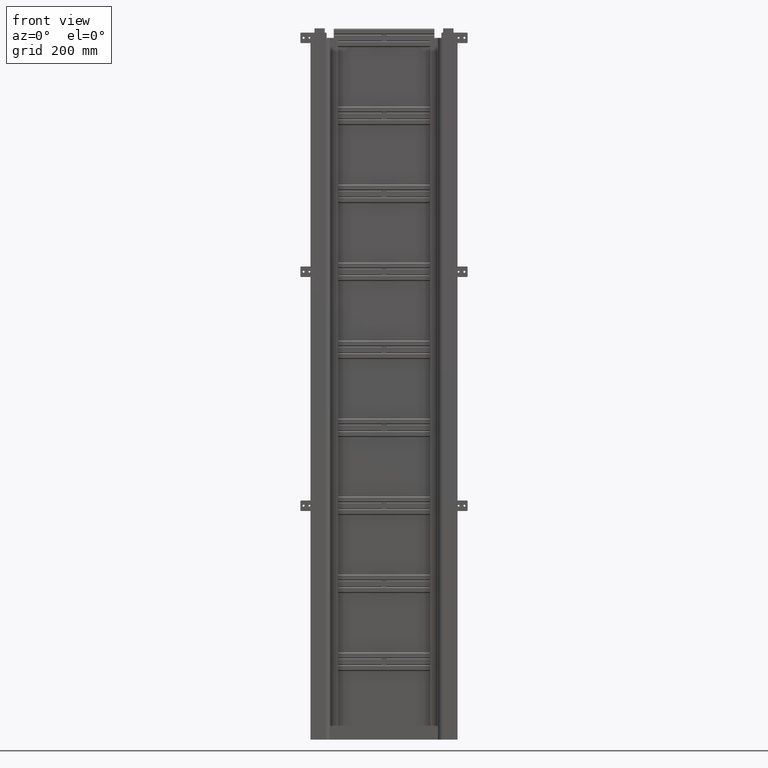
[diagram: clean part render]
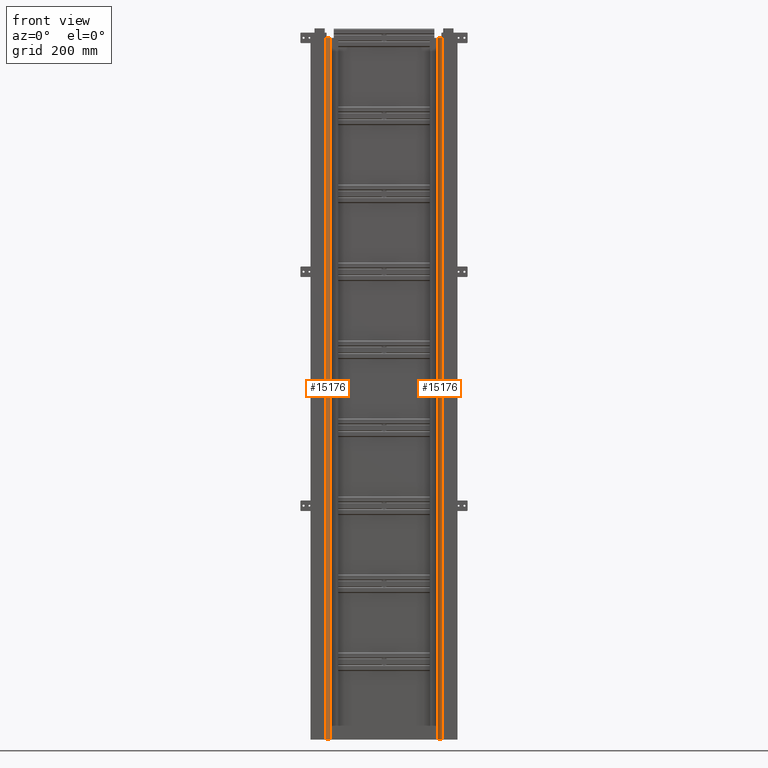
[diagram: same view with one multi-face feature highlighted, each face labeled with its STEP entity id]
A machine part, front view. The highlighted faces form ONE feature: a constant-radius fillet chain: 2 tangent blend faces with common blend radius 15.4 mm. The faces share edges in the B-rep.
Their STEP definitions:
[1] entity #15176 (Cylinder):
#14882=CARTESIAN_POINT('',(1.5E1,-2.98E1,-1.2E3));
#14883=DIRECTION('',(0.E0,0.E0,1.E0));
#14884=DIRECTION('',(-1.E0,0.E0,0.E0));
#14885=AXIS2_PLACEMENT_3D('',#14882,#14883,#14884);
#14908=CARTESIAN_POINT('',(1.5E1,-2.98E1,1.2E3));
#14909=DIRECTION('',(0.E0,0.E0,1.E0));
#14910=DIRECTION('',(-1.E0,0.E0,0.E0));
#14911=AXIS2_PLACEMENT_3D('',#14908,#14909,#14910);
#14941=DIRECTION('',(0.E0,0.E0,1.E0));
#14942=VECTOR('',#14941,2.4E3);
#14943=CARTESIAN_POINT('',(1.5E1,-4.52E1,-1.2E3));
#14944=LINE('',#14943,#14942);
#14945=DIRECTION('',(0.E0,0.E0,1.E0));
#14946=VECTOR('',#14945,2.4E3);
#14947=CARTESIAN_POINT('',(-4.E-1,-2.98E1,-1.2E3));
#14948=LINE('',#14947,#14946);
#14993=CARTESIAN_POINT('',(-4.E-1,-2.98E1,1.2E3));
#14994=VERTEX_POINT('',#14993);
#14995=CARTESIAN_POINT('',(-4.E-1,-2.98E1,-1.2E3));
#14996=VERTEX_POINT('',#14995);
#14997=CARTESIAN_POINT('',(1.5E1,-4.52E1,-1.2E3));
#14998=VERTEX_POINT('',#14997);
#15001=CARTESIAN_POINT('',(1.5E1,-4.52E1,1.2E3));
#15002=VERTEX_POINT('',#15001);
#15164=CARTESIAN_POINT('',(1.5E1,-2.98E1,-1.2E3));
#15165=DIRECTION('',(0.E0,0.E0,1.E0));
#15166=DIRECTION('',(0.E0,-1.E0,0.E0));
#15167=AXIS2_PLACEMENT_3D('',#15164,#15165,#15166);
#15168=CYLINDRICAL_SURFACE('',#15167,1.54E1);
#15169=ORIENTED_EDGE('',*,*,#15044,.F.);
#15171=ORIENTED_EDGE('',*,*,#15170,.T.);
#15172=ORIENTED_EDGE('',*,*,#15101,.T.);
#15173=ORIENTED_EDGE('',*,*,#15156,.F.);
#15174=EDGE_LOOP('',(#15169,#15171,#15172,#15173));
#15175=FACE_OUTER_BOUND('',#15174,.F.);
#14886=CIRCLE('',#14885,1.54E1);
#14912=CIRCLE('',#14911,1.54E1);
#15044=EDGE_CURVE('',#14996,#14998,#14886,.T.);
#15101=EDGE_CURVE('',#14994,#15002,#14912,.T.);
#15156=EDGE_CURVE('',#14998,#15002,#14944,.T.);
#15170=EDGE_CURVE('',#14996,#14994,#14948,.T.);
#15176=ADVANCED_FACE('',(#15175),#15168,.T.);
[2] entity #15176 (Cylinder):
#14882=CARTESIAN_POINT('',(1.5E1,-2.98E1,-1.2E3));
#14883=DIRECTION('',(0.E0,0.E0,1.E0));
#14884=DIRECTION('',(-1.E0,0.E0,0.E0));
#14885=AXIS2_PLACEMENT_3D('',#14882,#14883,#14884);
#14908=CARTESIAN_POINT('',(1.5E1,-2.98E1,1.2E3));
#14909=DIRECTION('',(0.E0,0.E0,1.E0));
#14910=DIRECTION('',(-1.E0,0.E0,0.E0));
#14911=AXIS2_PLACEMENT_3D('',#14908,#14909,#14910);
#14941=DIRECTION('',(0.E0,0.E0,1.E0));
#14942=VECTOR('',#14941,2.4E3);
#14943=CARTESIAN_POINT('',(1.5E1,-4.52E1,-1.2E3));
#14944=LINE('',#14943,#14942);
#14945=DIRECTION('',(0.E0,0.E0,1.E0));
#14946=VECTOR('',#14945,2.4E3);
#14947=CARTESIAN_POINT('',(-4.E-1,-2.98E1,-1.2E3));
#14948=LINE('',#14947,#14946);
#14993=CARTESIAN_POINT('',(-4.E-1,-2.98E1,1.2E3));
#14994=VERTEX_POINT('',#14993);
#14995=CARTESIAN_POINT('',(-4.E-1,-2.98E1,-1.2E3));
#14996=VERTEX_POINT('',#14995);
#14997=CARTESIAN_POINT('',(1.5E1,-4.52E1,-1.2E3));
#14998=VERTEX_POINT('',#14997);
#15001=CARTESIAN_POINT('',(1.5E1,-4.52E1,1.2E3));
#15002=VERTEX_POINT('',#15001);
#15164=CARTESIAN_POINT('',(1.5E1,-2.98E1,-1.2E3));
#15165=DIRECTION('',(0.E0,0.E0,1.E0));
#15166=DIRECTION('',(0.E0,-1.E0,0.E0));
#15167=AXIS2_PLACEMENT_3D('',#15164,#15165,#15166);
#15168=CYLINDRICAL_SURFACE('',#15167,1.54E1);
#15169=ORIENTED_EDGE('',*,*,#15044,.F.);
#15171=ORIENTED_EDGE('',*,*,#15170,.T.);
#15172=ORIENTED_EDGE('',*,*,#15101,.T.);
#15173=ORIENTED_EDGE('',*,*,#15156,.F.);
#15174=EDGE_LOOP('',(#15169,#15171,#15172,#15173));
#15175=FACE_OUTER_BOUND('',#15174,.F.);
#14886=CIRCLE('',#14885,1.54E1);
#14912=CIRCLE('',#14911,1.54E1);
#15044=EDGE_CURVE('',#14996,#14998,#14886,.T.);
#15101=EDGE_CURVE('',#14994,#15002,#14912,.T.);
#15156=EDGE_CURVE('',#14998,#15002,#14944,.T.);
#15170=EDGE_CURVE('',#14996,#14994,#14948,.T.);
#15176=ADVANCED_FACE('',(#15175),#15168,.T.);